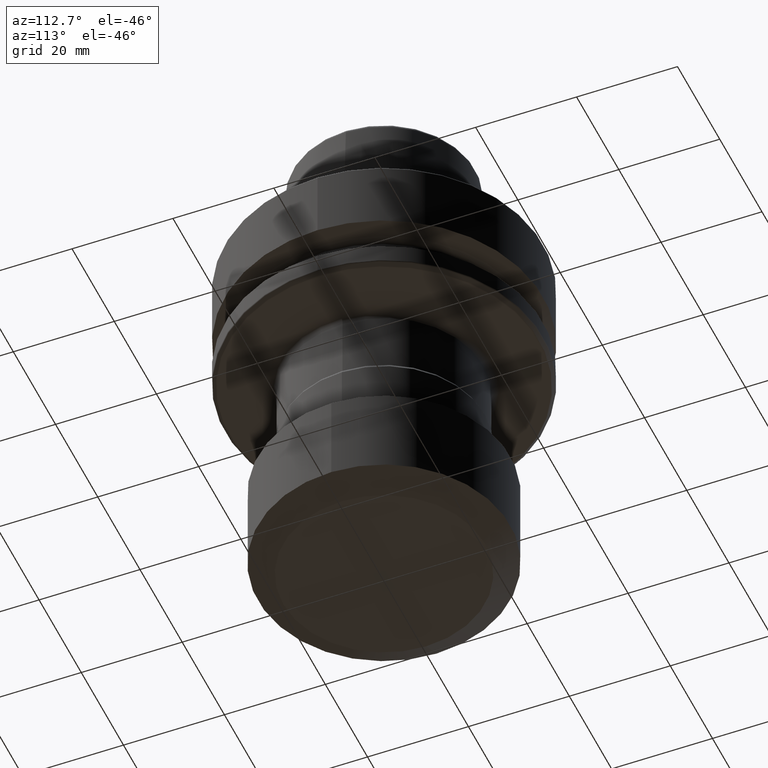
[diagram: clean part render]
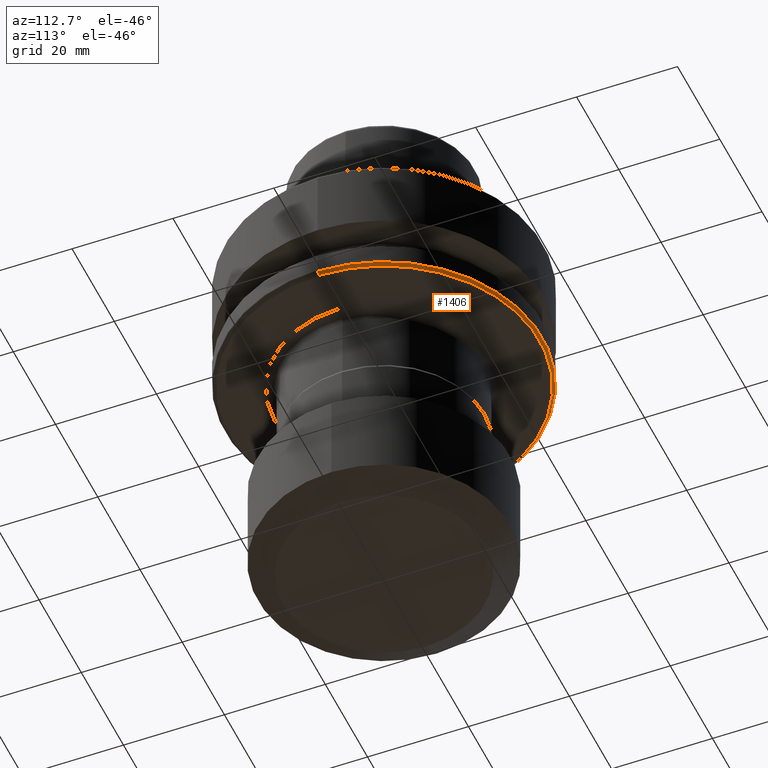
[diagram: same view with one face highlighted and labeled with its STEP entity id]
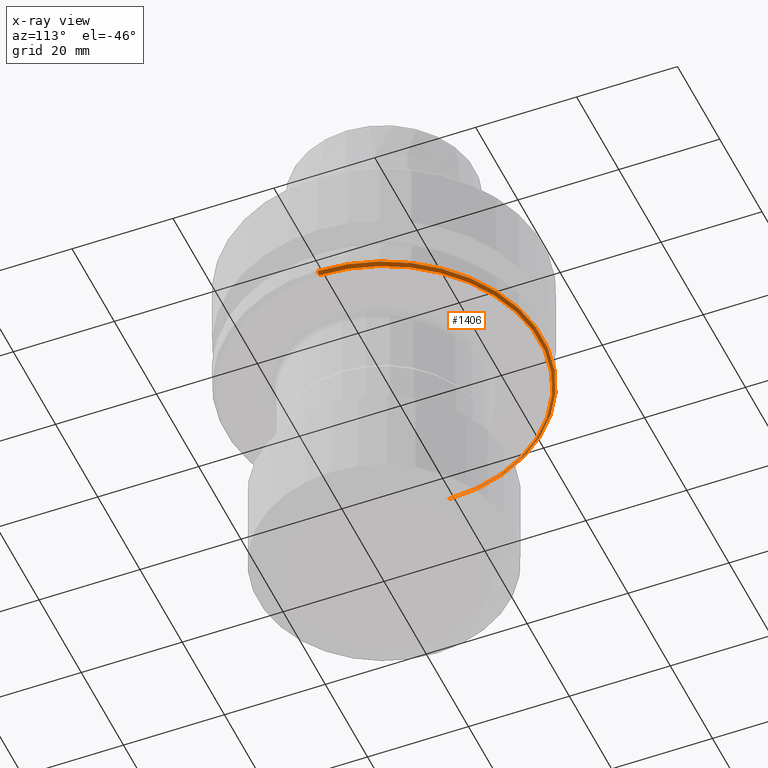
[diagram: x-ray of the same camera — body ghosted, the highlighted face saturated]
A machine part, auxiliary view. The second image highlights one B-rep face of the part: STEP entity #1406.
The next image is the same camera in x-ray: the body ghosted, the highlighted face saturated — about 3% of this face is hidden behind the body in this view.
In plain terms, the highlighted conical surface has half-angle 45 deg.
Its self-contained STEP definition (entity closure, byte-faithful):
#12 = DIRECTION ( 'NONE',  ( -0.7071067811865432400, 8.659560562354881100E-017, 0.7071067811865517900 ) ) ;
#55 = AXIS2_PLACEMENT_3D ( 'NONE', #662, #1524, #1272 ) ;
#126 = VERTEX_POINT ( 'NONE', #191 ) ;
#152 = ORIENTED_EDGE ( 'NONE', *, *, #362, .T. ) ;
#157 = LINE ( 'NONE', #983, #1425 ) ;
#191 = CARTESIAN_POINT ( 'NONE',  ( 30.81715728752538300, 0.0000000000000000000, -30.88284271247462000 ) ) ;
#308 = FACE_OUTER_BOUND ( 'NONE', #941, .T. ) ;
#351 = DIRECTION ( 'NONE',  ( -0.0000000000000000000, -0.0000000000000000000, 1.000000000000000000 ) ) ;
#362 = EDGE_CURVE ( 'NONE', #417, #1570, #526, .T. ) ;
#417 = VERTEX_POINT ( 'NONE', #1488 ) ;
#454 = CIRCLE ( 'NONE', #1273, 31.38284271247461600 ) ;
#508 = DIRECTION ( 'NONE',  ( 0.7071067811865432400, 0.0000000000000000000, 0.7071067811865517900 ) ) ;
#526 = LINE ( 'NONE', #744, #1133 ) ;
#542 = DIRECTION ( 'NONE',  ( -0.0000000000000000000, -0.0000000000000000000, 1.000000000000000000 ) ) ;
#575 = CARTESIAN_POINT ( 'NONE',  ( -31.38284271247461600, 3.843289787597687600E-015, -30.31715728752538300 ) ) ;
#662 = CARTESIAN_POINT ( 'NONE',  ( 0.0000000000000000000, 0.0000000000000000000, -30.31715728752538300 ) ) ;
#744 = CARTESIAN_POINT ( 'NONE',  ( -31.38284271247461600, 3.843289787597687600E-015, -30.31715728752538300 ) ) ;
#761 = CARTESIAN_POINT ( 'NONE',  ( 0.0000000000000000000, 0.0000000000000000000, -30.31715728752538300 ) ) ;
#781 = ORIENTED_EDGE ( 'NONE', *, *, #1004, .F. ) ;
#784 = ORIENTED_EDGE ( 'NONE', *, *, #940, .F. ) ;
#867 = ORIENTED_EDGE ( 'NONE', *, *, #1097, .T. ) ;
#891 = DIRECTION ( 'NONE',  ( 1.000000000000000000, 0.0000000000000000000, 0.0000000000000000000 ) ) ;
#897 = CARTESIAN_POINT ( 'NONE',  ( 31.38284271247461600, 0.0000000000000000000, -30.31715728752538300 ) ) ;
#940 = EDGE_CURVE ( 'NONE', #126, #1356, #157, .T. ) ;
#941 = EDGE_LOOP ( 'NONE', ( #867, #152, #781, #784 ) ) ;
#983 = CARTESIAN_POINT ( 'NONE',  ( 31.38284271247461600, 0.0000000000000000000, -30.31715728752538300 ) ) ;
#1004 = EDGE_CURVE ( 'NONE', #1356, #1570, #454, .T. ) ;
#1087 = CARTESIAN_POINT ( 'NONE',  ( 0.0000000000000000000, 0.0000000000000000000, -30.88284271247462000 ) ) ;
#1097 = EDGE_CURVE ( 'NONE', #126, #417, #1274, .T. ) ;
#1111 = AXIS2_PLACEMENT_3D ( 'NONE', #1087, #351, #1215 ) ;
#1133 = VECTOR ( 'NONE', #12, 1000.000000000000000 ) ;
#1214 = CONICAL_SURFACE ( 'NONE', #55, 31.38284271247461600, 0.7853981633974422800 ) ;
#1215 = DIRECTION ( 'NONE',  ( 1.000000000000000000, 0.0000000000000000000, 0.0000000000000000000 ) ) ;
#1272 = DIRECTION ( 'NONE',  ( 1.000000000000000000, 0.0000000000000000000, 0.0000000000000000000 ) ) ;
#1273 = AXIS2_PLACEMENT_3D ( 'NONE', #761, #542, #891 ) ;
#1274 = CIRCLE ( 'NONE', #1111, 30.81715728752538300 ) ;
#1356 = VERTEX_POINT ( 'NONE', #897 ) ;
#1406 = ADVANCED_FACE ( 'NONE', ( #308 ), #1214, .T. ) ;
#1425 = VECTOR ( 'NONE', #508, 1000.000000000000000 ) ;
#1488 = CARTESIAN_POINT ( 'NONE',  ( -30.81715728752538300, 3.774013303098849300E-015, -30.88284271247462000 ) ) ;
#1524 = DIRECTION ( 'NONE',  ( -0.0000000000000000000, -0.0000000000000000000, 1.000000000000000000 ) ) ;
#1570 = VERTEX_POINT ( 'NONE', #575 ) ;